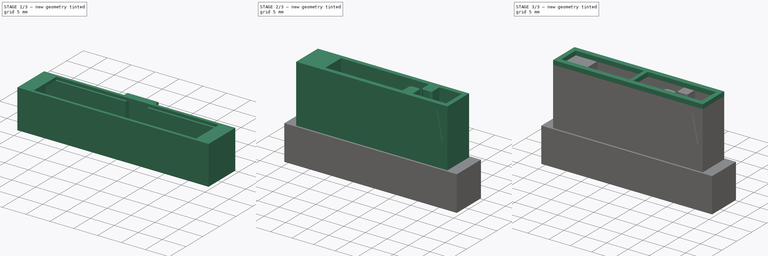
[diagram: build sequence overview — one tinted view per stage of 3, left to right]
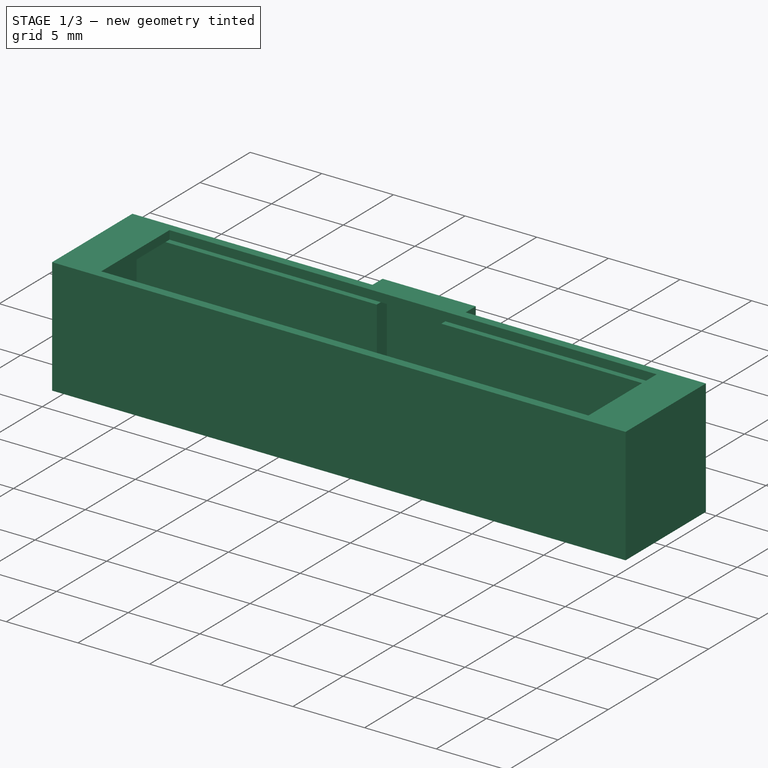
[diagram: stage 1 of 3 — iso view after this stage's code; geometry added in this stage tinted green]
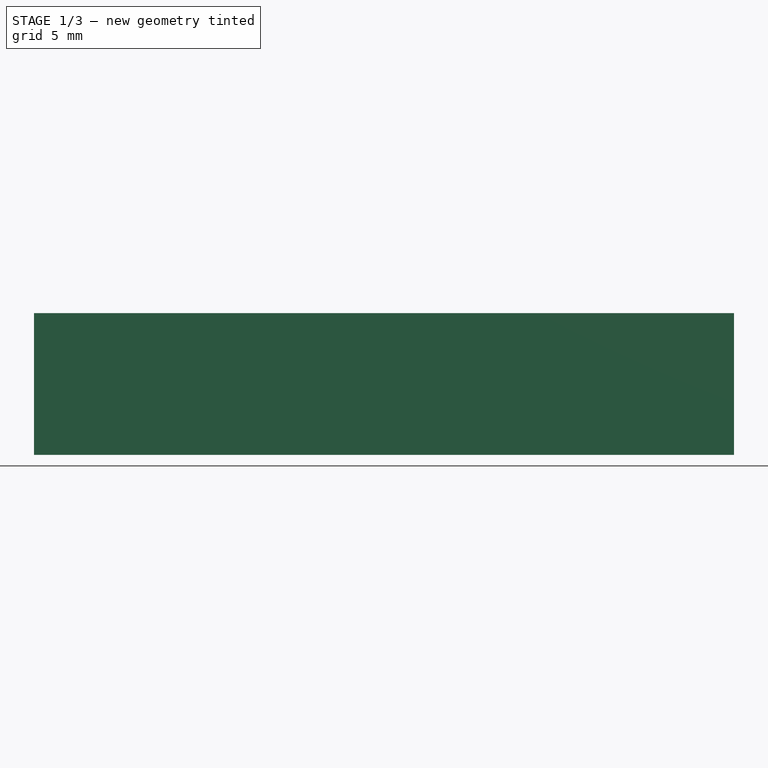
[diagram: stage 1 of 3 — front view after this stage's code; geometry added in this stage tinted green]
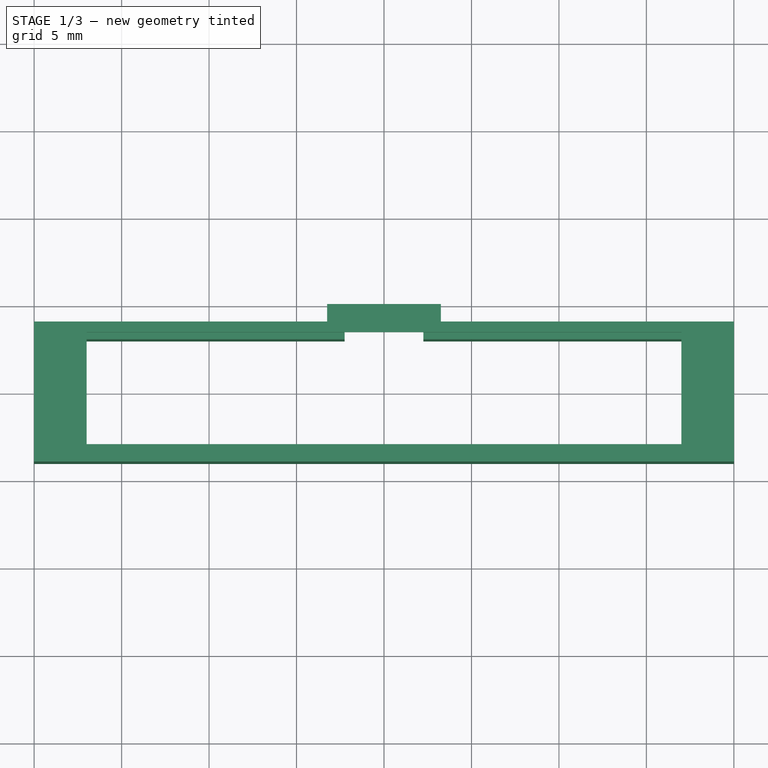
[diagram: stage 1 of 3 — top view after this stage's code; geometry added in this stage tinted green]
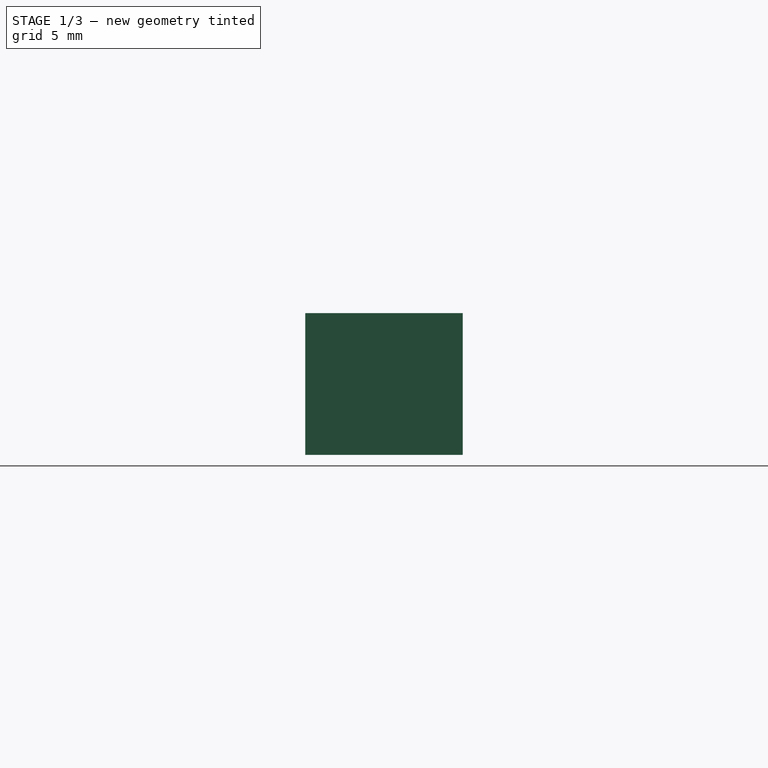
[diagram: stage 1 of 3 — right view after this stage's code; geometry added in this stage tinted green]
FCSTD DOCUMENT  (FreeCAD 0.20R26202 (Git))
Label: 26pos-jumper-adapter-MRV210-24
License: All rights reserved
LicenseURL: http://en.wikipedia.org/wiki/All_rights_reserved
objects: Sketcher::SketchObject×7, PartDesign::Pad×6, PartDesign::Pocket×1, PartDesign::Body×1
note: 22 computed .brp shape members not serialized (recipe doc carries the construction recipe); baked Part::Feature solids carry a one-line shape summary decoded from their .brp

FEATURE [Sketcher::SketchObject] Sketch  label="IDC-box"
  FullyConstrained = true
  MapMode = 5
  Support = -> [XY_Plane]
  expr: Constraints[16] = 5 + 13 * 2.54
  sketch-geometry (16):
    g0: LineSegment StartX=-19.01 StartY=3 StartZ=0 EndX=-2.25 EndY=3 EndZ=0
    g1: LineSegment StartX=19.01 StartY=3 StartZ=0 EndX=19.01 EndY=-3 EndZ=0
    g2: LineSegment StartX=19.01 StartY=-3 StartZ=0 EndX=-19.01 EndY=-3 EndZ=0
    g3: LineSegment StartX=-19.01 StartY=-3 StartZ=0 EndX=-19.01 EndY=3 EndZ=0
    g4: LineSegment StartX=-20.01 StartY=4 StartZ=0 EndX=-3.25 EndY=4 EndZ=0
    g5: LineSegment StartX=20.01 StartY=4 StartZ=0 EndX=20.01 EndY=-4 EndZ=0
    g6: LineSegment StartX=20.01 StartY=-4 StartZ=0 EndX=-20.01 EndY=-4 EndZ=0
    g7: LineSegment StartX=-20.01 StartY=-4 StartZ=0 EndX=-20.01 EndY=4 EndZ=0
    g8: LineSegment StartX=2.25 StartY=4 StartZ=0 EndX=2.25 EndY=3 EndZ=0
    g9: LineSegment StartX=-2.25 StartY=3 StartZ=0 EndX=-2.25 EndY=4 EndZ=0
    g10: LineSegment StartX=3.25 StartY=4 StartZ=0 EndX=20.01 EndY=4 EndZ=0
    g11: LineSegment StartX=2.25 StartY=3 StartZ=0 EndX=19.01 EndY=3 EndZ=0
    g12: LineSegment StartX=-3.25 StartY=4 StartZ=0 EndX=-3.25 EndY=5 EndZ=0
    g13: LineSegment StartX=-3.25 StartY=5 StartZ=0 EndX=3.25 EndY=5 EndZ=0
    g14: LineSegment StartX=3.25 StartY=5 StartZ=0 EndX=3.25 EndY=4 EndZ=0
    g15: LineSegment StartX=2.25 StartY=4 StartZ=0 EndX=-2.25 EndY=4 EndZ=0
  constraints (43):
    c: Coincident(g11,g1)
    c: Coincident(g1,g2)
    c: Coincident(g3,g0)
    c: Vertical(g3)
    c: Coincident(g10,g5)
    c: Coincident(g5,g6)
    c: Coincident(g6,g7)
    c: Coincident(g7,g4)
    c: Horizontal(g4)
    c: Horizontal(g6)
    c: Vertical(g5)
    c: Vertical(g7)
    c: DistanceY(g3,g3) = 6
    c: Symmetric(g2,g1,g-2)
    c: Coincident(g3,g2)
    c: Symmetric(g1,g11,g-1)
    c: DistanceX(g0,g11) = 38.02
    c: DistanceX(g1,g5) = 1
    c: DistanceY(g5,g1) = 1
    c: DistanceX(g4,g0) = 1
    c: DistanceY(g0,g4) = 1
    c: Vertical(g8)
    c: Vertical(g9)
    c: Tangent(g4,g10)
    c: Tangent(g0,g11)
    c: Coincident(g8,g11)
    c: Coincident(g9,g0)
    c: Symmetric(g0,g8,g-2)
    c: DistanceX(g9,g8) = 4.5
    c: Vertical(g12)
    c: Coincident(g12,g13)
    c: Horizontal(g13)
    c: Coincident(g13,g14)
    c: Vertical(g14)
    c: Coincident(g15,g9)
    c: Coincident(g4,g12)
    c: Coincident(g10,g14)
    c: Coincident(g8,g15)
    c: Horizontal(g15)
    c: PointOnObject(g8,g10)
    c: DistanceX(g4,g9) = 1
    c: DistanceX(g8,g10) = 1
    c: DistanceY(g14,g14) = 1
FEATURE [PartDesign::Pad] Pad
  Direction = (0,0,1)
  Length = 7.5
  Length2 = 100
  Profile = -> Sketch
  Reversed = true
  Type = 0
FEATURE [Sketcher::SketchObject] Sketch001  label="jumperbox"
  FullyConstrained = true
  MapMode = 5
  Support = -> [XY_Plane]
  expr: Constraints[51] = 3 * 2.54 + 0.1
  expr: Constraints[38] = 2 * 2.54 + 1
  expr: Constraints[50] = 8 * 2.54 + 0.1
  expr: Constraints[49] = 2 * 2.54 + 0.1
  expr: Constraints[48] = 2 * 2.54 + 0.1
  sketch-geometry (20):
    g0: LineSegment StartX=16.54 StartY=2.59 StartZ=0 EndX=16.54 EndY=-2.59 EndZ=0
    g1: LineSegment StartX=16.54 StartY=-2.59 StartZ=0 EndX=8.82 EndY=-2.59 EndZ=0
    g2: LineSegment StartX=-17.54 StartY=3.59 StartZ=0 EndX=17.54 EndY=3.59 EndZ=0
    g3: LineSegment StartX=17.54 StartY=3.59 StartZ=0 EndX=17.54 EndY=-3.59 EndZ=0
    g4: LineSegment StartX=17.54 StartY=-3.59 StartZ=0 EndX=-17.54 EndY=-3.59 EndZ=0
    g5: LineSegment StartX=-17.54 StartY=-3.59 StartZ=0 EndX=-17.54 EndY=3.59 EndZ=0
    g6: LineSegment StartX=6.42 StartY=-2.59 StartZ=0 EndX=6.42 EndY=-0.5 EndZ=0
    g7: LineSegment StartX=6.92 StartY=0 StartZ=0 EndX=8.32 EndY=0 EndZ=0
    g8: LineSegment StartX=8.82 StartY=-0.5 StartZ=0 EndX=8.82 EndY=-2.59 EndZ=0
    g9: LineSegment StartX=6.42 StartY=-2.59 StartZ=0 EndX=-11.46 EndY=-2.59 EndZ=0
    g10: ArcOfCircle CenterX=6.92 CenterY=-0.5 CenterZ=0 NormalX=0 NormalY=0 NormalZ=1 AngleXU=0 Radius=0.5 StartAngle=1.5708 EndAngle=3.14159
    g11: ArcOfCircle CenterX=8.32 CenterY=-0.5 CenterZ=0 NormalX=0 NormalY=0 NormalZ=1 AngleXU=0 Radius=0.5 StartAngle=0 EndAngle=1.5708
    g12: LineSegment StartX=11.36 StartY=2.59 StartZ=0 EndX=11.36 EndY=0.5 EndZ=0
    g13: LineSegment StartX=10.86 StartY=0 StartZ=0 EndX=9.46 EndY=0 EndZ=0
    g14: LineSegment StartX=8.96 StartY=0.5 StartZ=0 EndX=8.96 EndY=2.59 EndZ=0
    g15: ArcOfCircle CenterX=10.86 CenterY=0.5 CenterZ=0 NormalX=0 NormalY=0 NormalZ=1 AngleXU=0 Radius=0.5 StartAngle=4.71239 EndAngle=6.28319
    g16: ArcOfCircle CenterX=9.46 CenterY=0.5 CenterZ=0 NormalX=0 NormalY=0 NormalZ=1 AngleXU=0 Radius=0.5 StartAngle=3.14159 EndAngle=4.71239
    g17: LineSegment StartX=11.36 StartY=2.59 StartZ=0 EndX=16.54 EndY=2.59 EndZ=0
    g18: LineSegment StartX=-11.46 StartY=-2.59 StartZ=0 EndX=-11.46 EndY=2.59 EndZ=0
    g19: LineSegment StartX=-11.46 StartY=2.59 StartZ=0 EndX=8.96 EndY=2.59 EndZ=0
  constraints (52):
    c: Coincident(g17,g0)
    c: Coincident(g0,g1)
    c: Coincident(g2,g3)
    c: Coincident(g3,g4)
    c: Coincident(g4,g5)
    c: Coincident(g5,g2)
    c: Horizontal(g4)
    c: Vertical(g3)
    c: Symmetric(g0,g17,g-1)
    c: DistanceX(g0,g3) = 1
    c: DistanceY(g3,g0) = 1
    c: Horizontal(g7)
    c: Vertical(g6)
    c: Vertical(g8)
    c: Tangent(g1,g9)
    c: Coincident(g6,g9)
    c: Coincident(g1,g8)
    c: Tangent(g6,g10) = 1.5708
    c: Tangent(g7,g10) = 1.5708
    c: Tangent(g7,g11) = 1.5708
    c: Tangent(g8,g11) = 1.5708
    c: Equal(g11,g10)
    c: PointOnObject(g7,g-1)
    c: Radius(g10) = 0.5
    c: Horizontal(g13)
    c: Vertical(g12)
    c: Vertical(g14)
    c: Tangent(g12,g15) = 1.5708
    c: Tangent(g13,g15) = 1.5708
    c: Tangent(g13,g16) = 1.5708
    c: Tangent(g14,g16) = 1.5708
    c: Equal(g16,g15)
    c: Equal(g15,g11)
    c: PointOnObject(g13,g-1)
    c: Coincident(g12,g17)
    c: Coincident(g19,g14)
    c: Coincident(g18,g9)
    c: Coincident(g18,g19)
    c: DistanceX(g2,g18) = 6.08
    c: Symmetric(g2,g2,g-2)
    c: DistanceX(g2,g2) = 35.08
    c: DistanceX(g6,g1) = 2.4
    c: DistanceX(g14,g12) = 2.4
    c: Horizontal(g9)
    c: Horizontal(g17)
    c: PointOnObject(g12,g19)
    c: Symmetric(g9,g18,g-1)
    c: Symmetric(g4,g2,g-1)
    c: DistanceY(g18,g18) = 5.18
    c: DistanceX(g17,g17) = 5.18
    c: DistanceX(g19,g19) = 20.42
    c: DistanceX(g1,g1) = 7.72
FEATURE [Sketcher::SketchObject] Sketch003  label="downarrow"
  FullyConstrained = false
  MapMode = 5
  Placement = pos=(0,4,0) rot=(0,0.707107,0.707107;3.14159rad)
  Support = -> [Pad]
  sketch-geometry (3):
    g0: LineSegment StartX=15 StartY=-6 StartZ=0 EndX=16.5 EndY=-1.5 EndZ=0
    g1: LineSegment StartX=16.5 StartY=-1.5 StartZ=0 EndX=13.5 EndY=-1.5 EndZ=0
    g2: LineSegment StartX=13.5 StartY=-1.5 StartZ=0 EndX=15 EndY=-6 EndZ=0
  constraints (4):
    c: Coincident(g0,g1)
    c: Horizontal(g1)
    c: Coincident(g1,g2)
    c: Coincident(g2,g0)
FEATURE [Sketcher::SketchObject] Sketch002  label="ceiling"
  ExternalGeometry = -> [Pad]
  FullyConstrained = true
  MapMode = 5
  Support = -> [XY_Plane]
  sketch-geometry (12):
    g0: LineSegment StartX=-17 StartY=3.4 StartZ=0 EndX=17 EndY=3.4 EndZ=0
    g1: LineSegment StartX=-17 StartY=-3.4 StartZ=0 EndX=-17 EndY=3.4 EndZ=0
    g2: LineSegment StartX=-20.01 StartY=4 StartZ=0 EndX=-20.01 EndY=-4 EndZ=0
    g3: LineSegment StartX=-20.01 StartY=-4 StartZ=0 EndX=20.01 EndY=-4 EndZ=0
    g4: LineSegment StartX=20.01 StartY=-4 StartZ=0 EndX=20.01 EndY=4 EndZ=0
    g5: LineSegment StartX=20.01 StartY=4 StartZ=0 EndX=3.25 EndY=4 EndZ=0
    g6: LineSegment StartX=3.25 StartY=4 StartZ=0 EndX=3.25 EndY=5 EndZ=0
    g7: LineSegment StartX=3.25 StartY=5 StartZ=0 EndX=-3.25 EndY=5 EndZ=0
    g8: LineSegment StartX=-3.25 StartY=5 StartZ=0 EndX=-3.25 EndY=4 EndZ=0
    g9: LineSegment StartX=-3.25 StartY=4 StartZ=0 EndX=-20.01 EndY=4 EndZ=0
    g10: LineSegment StartX=-17 StartY=-3.4 StartZ=0 EndX=17 EndY=-3.4 EndZ=0
    g11: LineSegment StartX=17 StartY=-3.4 StartZ=0 EndX=17 EndY=3.4 EndZ=0
  constraints (28):
    c: Coincident(g-3,g2)
    c: Vertical(g2)
    c: Coincident(g2,g3)
    c: Coincident(g3,g-5)
    c: Horizontal(g3)
    c: Coincident(g3,g4)
    c: Coincident(g4,g-5)
    c: Coincident(g4,g5)
    c: Horizontal(g5)
    c: Coincident(g5,g6)
    c: Coincident(g6,g-4)
    c: Vertical(g6)
    c: Coincident(g6,g7)
    c: Coincident(g7,g-4)
    c: Coincident(g7,g8)
    c: Coincident(g8,g-3)
    c: Coincident(g8,g9)
    c: Coincident(g9,g2)
    c: Symmetric(g1,g0,g-2)
    c: DistanceX(g1,g0) = 34
    c: DistanceY(g1,g1) = 6.8
    c: Symmetric(g1,g1,g-1)
    c: Coincident(g0,g1)
    c: Coincident(g1,g10)
    c: Horizontal(g10)
    c: Coincident(g10,g11)
    c: Vertical(g11)
    c: Coincident(g11,g0)
FEATURE [PartDesign::Pad] Pad001
  BaseFeature = -> Pad
  Direction = (0,0,1)
  Length = 0.6
  Length2 = 100
  Profile = -> Sketch002
  Type = 0
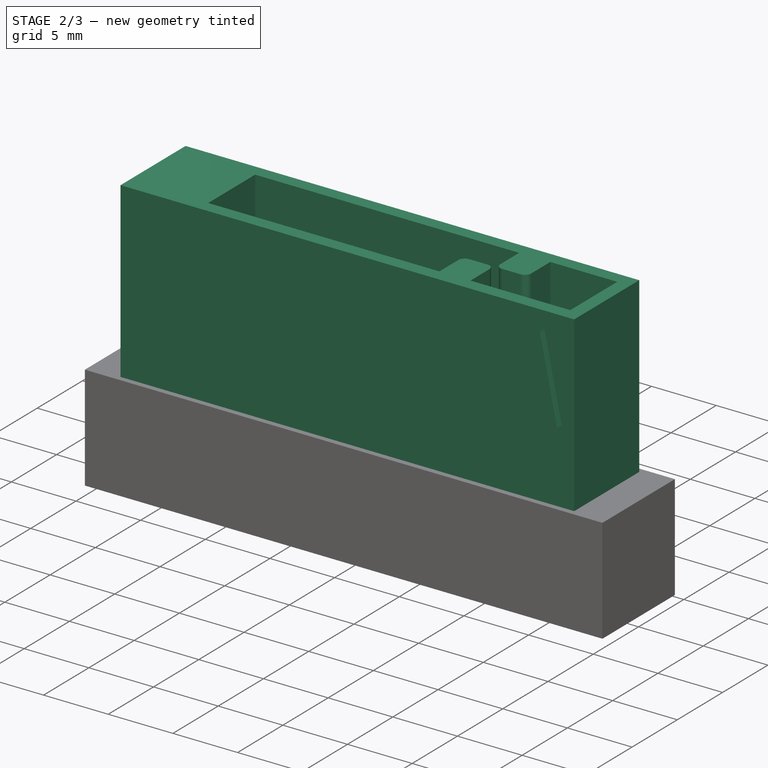
[diagram: stage 2 of 3 — iso view after this stage's code; geometry added in this stage tinted green]
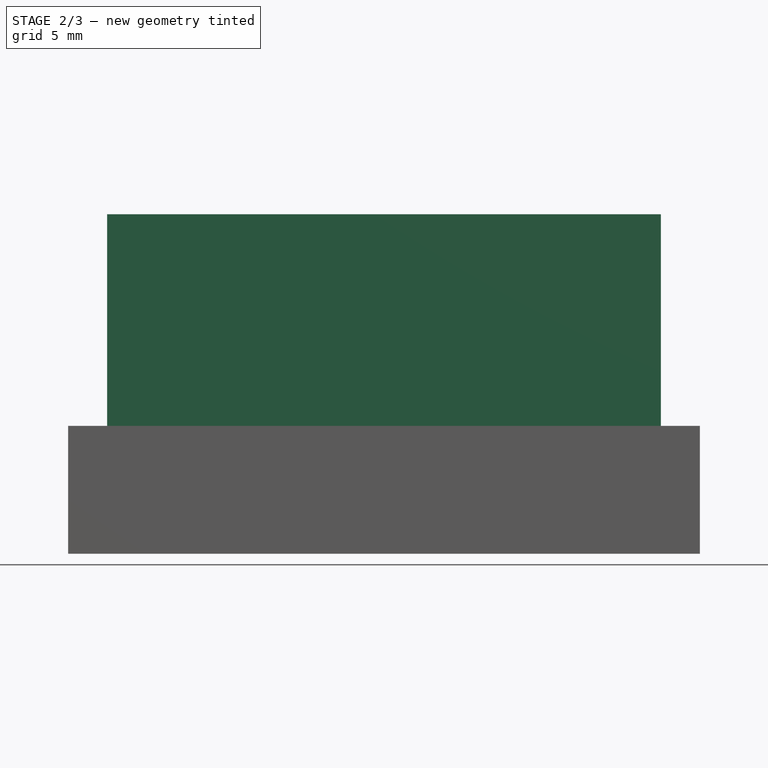
[diagram: stage 2 of 3 — front view after this stage's code; geometry added in this stage tinted green]
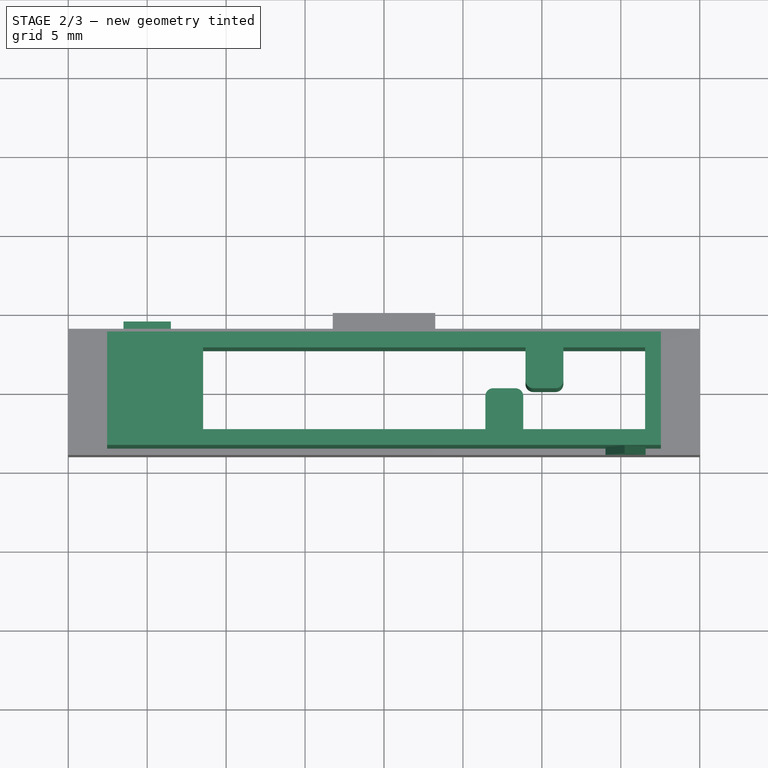
[diagram: stage 2 of 3 — top view after this stage's code; geometry added in this stage tinted green]
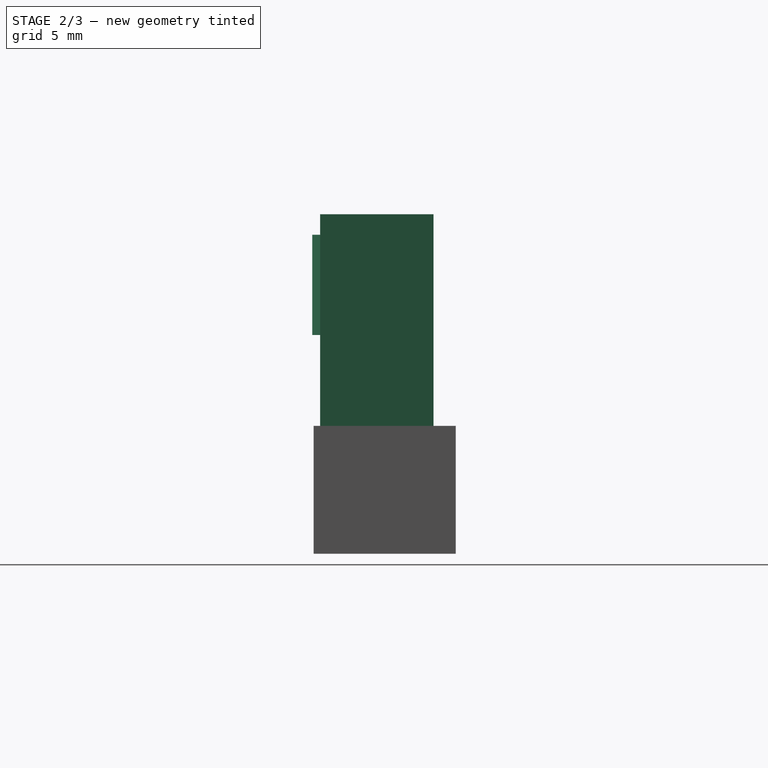
[diagram: stage 2 of 3 — right view after this stage's code; geometry added in this stage tinted green]
FEATURE [PartDesign::Pad] Pad002  label="Jumperbox"
  BaseFeature = -> Pad001
  Direction = (0,0,1)
  Length = 14
  Length2 = 100
  Profile = -> Sketch001
  Type = 0
FEATURE [PartDesign::Pad] Pad003  label="Downarrow"
  BaseFeature = -> Pad002
  Direction = (0,1,-2e-16)
  Length = 0.5
  Length2 = 100
  Profile = -> Sketch003
  Type = 0
FEATURE [Sketcher::SketchObject] Sketch004  label="uparrow"
  FullyConstrained = false
  MapMode = 5
  Placement = pos=(0,-3.59,0) rot=(1,0,0;1.5708rad)
  Support = -> [Pad003]
  sketch-geometry (3):
    g0: LineSegment StartX=16.5685 StartY=6.35 StartZ=0 EndX=15.24 EndY=12.7 EndZ=0
    g1: LineSegment StartX=15.24 StartY=12.7 StartZ=0 EndX=14.0285 EndY=6.35 EndZ=0
    g2: LineSegment StartX=14.0285 StartY=6.35 StartZ=0 EndX=16.5685 EndY=6.35 EndZ=0
  constraints (4):
    c: Coincident(g0,g1)
    c: Coincident(g1,g2)
    c: Coincident(g2,g0)
    c: Horizontal(g2)
FEATURE [PartDesign::Pad] Pad004  label="Uparrow"
  BaseFeature = -> Pad003
  Direction = (0,-1,2e-16)
  Length = 0.5
  Length2 = 100
  Profile = -> Sketch004
  Type = 0
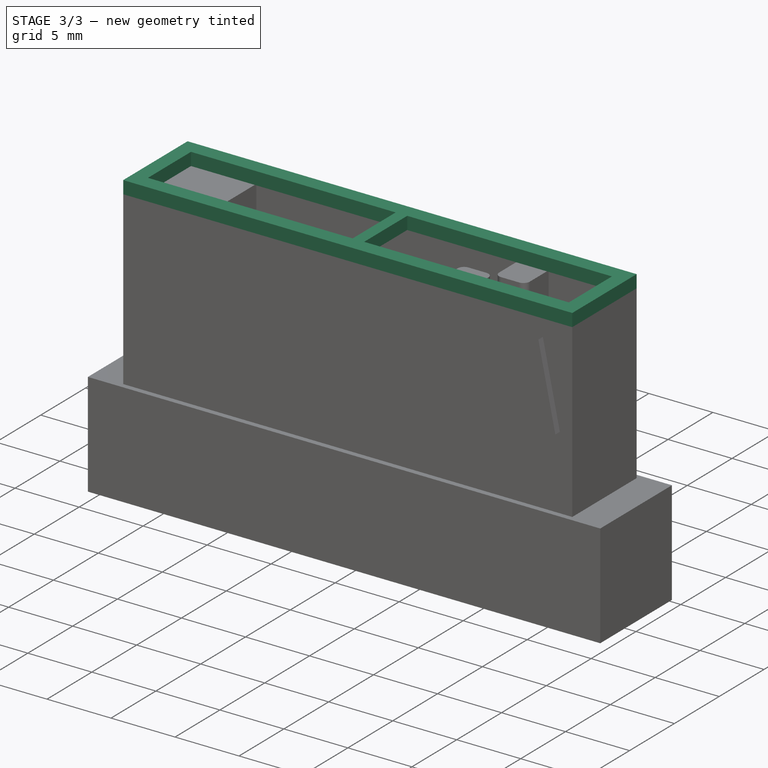
[diagram: stage 3 of 3 — iso view after this stage's code; geometry added in this stage tinted green]
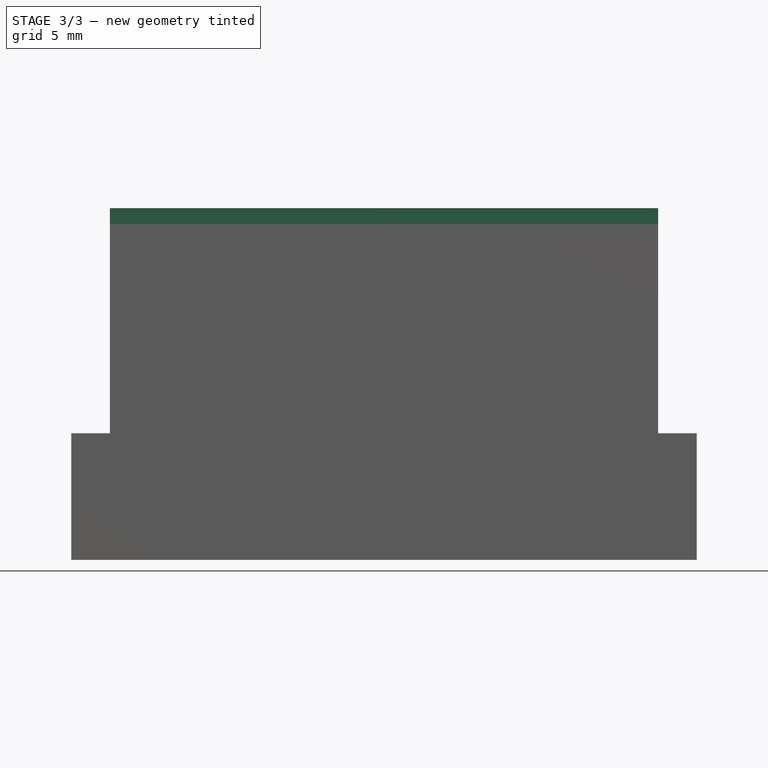
[diagram: stage 3 of 3 — front view after this stage's code; geometry added in this stage tinted green]
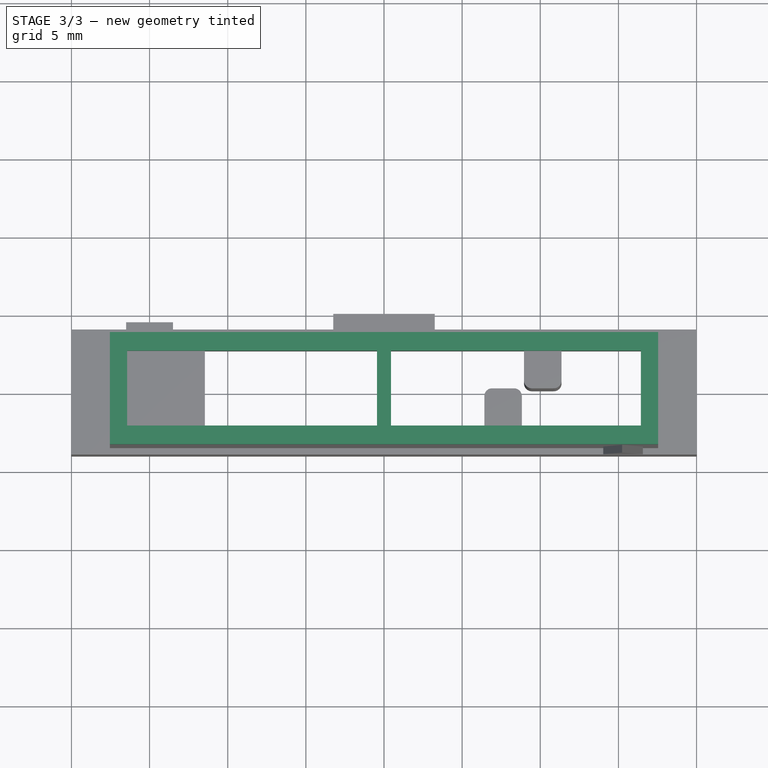
[diagram: stage 3 of 3 — top view after this stage's code; geometry added in this stage tinted green]
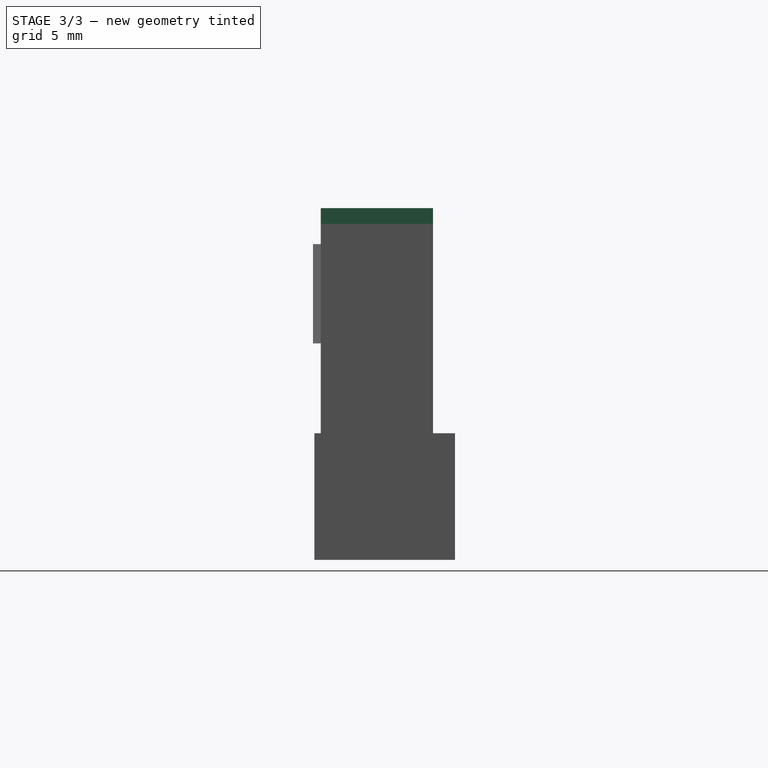
[diagram: stage 3 of 3 — right view after this stage's code; geometry added in this stage tinted green]
FEATURE [Sketcher::SketchObject] Sketch005  label="neck"
  AttachmentOffset = pos=(0,0,14) rot=(0,0,1;0rad)
  ExternalGeometry = -> [Pad004]
  FullyConstrained = true
  MapMode = 5
  Placement = pos=(0,0,14) rot=(0,0,1;0rad)
  Support = -> [XY_Plane]
  sketch-geometry (12):
    g0: LineSegment StartX=-17.54 StartY=3.59 StartZ=0 EndX=17.54 EndY=3.59 EndZ=0
    g1: LineSegment StartX=17.54 StartY=3.59 StartZ=0 EndX=17.54 EndY=-3.59 EndZ=0
    g2: LineSegment StartX=17.54 StartY=-3.59 StartZ=0 EndX=-17.54 EndY=-3.59 EndZ=0
    g3: LineSegment StartX=-17.54 StartY=-3.59 StartZ=0 EndX=-17.54 EndY=3.59 EndZ=0
    g4: LineSegment StartX=-16.44 StartY=2.4 StartZ=0 EndX=-0.45 EndY=2.4 EndZ=0
    g5: LineSegment StartX=-0.45 StartY=2.4 StartZ=0 EndX=-0.45 EndY=-2.4 EndZ=0
    g6: LineSegment StartX=-0.45 StartY=-2.4 StartZ=0 EndX=-16.44 EndY=-2.4 EndZ=0
    g7: LineSegment StartX=-16.44 StartY=-2.4 StartZ=0 EndX=-16.44 EndY=2.4 EndZ=0
    g8: LineSegment StartX=0.45 StartY=2.4 StartZ=0 EndX=16.44 EndY=2.4 EndZ=0
    g9: LineSegment StartX=16.44 StartY=2.4 StartZ=0 EndX=16.44 EndY=-2.4 EndZ=0
    g10: LineSegment StartX=16.44 StartY=-2.4 StartZ=0 EndX=0.45 EndY=-2.4 EndZ=0
    g11: LineSegment StartX=0.45 StartY=-2.4 StartZ=0 EndX=0.45 EndY=2.4 EndZ=0
  constraints (32):
    c: Coincident(g0,g1)
    c: Coincident(g1,g2)
    c: Coincident(g2,g3)
    c: Coincident(g3,g0)
    c: Horizontal(g0)
    c: Horizontal(g2)
    c: Vertical(g1)
    c: Vertical(g3)
    c: Coincident(g0,g-3)
    c: Symmetric(g0,g1,g-1)
    c: Coincident(g4,g5)
    c: Coincident(g5,g6)
    c: Coincident(g6,g7)
    c: Coincident(g7,g4)
    c: Horizontal(g4)
    c: Horizontal(g6)
    c: Vertical(g5)
    c: Vertical(g7)
    c: Coincident(g8,g9)
    c: Coincident(g9,g10)
    c: Coincident(g10,g11)
    c: Coincident(g11,g8)
    c: Horizontal(g8)
    c: Horizontal(g10)
    c: Vertical(g11)
    c: Symmetric(g5,g10,g-2)
    c: DistanceX(g5,g10) = 0.9
    c: Horizontal(g8,g4)
    c: Equal(g4,g8)
    c: Symmetric(g9,g8,g-1)
    c: DistanceY(g9,g9) = 4.8
    c: DistanceX(g8,g0) = 1.1
FEATURE [PartDesign::Pad] Pad005  label="Neck"
  BaseFeature = -> Pad004
  Direction = (0,0,1)
  Length = 1
  Length2 = 100
  Profile = -> Sketch005
  ReferenceAxis = -> Sketch005 [N_Axis]
  Type = 0
FEATURE [Sketcher::SketchObject] Sketch006
  FullyConstrained = true
  MapMode = 5
  Placement = pos=(0,0,0) rot=(0.57735,0.57735,0.57735;2.0944rad)
  Support = -> [YZ_Plane]
  sketch-geometry (5):
    g0: LineSegment StartX=-3 StartY=0 StartZ=0 EndX=-3 EndY=-1 EndZ=0
    g1: LineSegment StartX=-3 StartY=-1 StartZ=0 EndX=3 EndY=-1 EndZ=0
    g2: LineSegment StartX=3 StartY=-1 StartZ=0 EndX=3 EndY=0 EndZ=0
    g3: LineSegment StartX=3 StartY=0 StartZ=0 EndX=0 EndY=3 EndZ=0
    g4: LineSegment StartX=0 StartY=3 StartZ=0 EndX=-3 EndY=0 EndZ=0
  constraints (14):
    c: PointOnObject(g0,g-1)
    c: Vertical(g0)
    c: Coincident(g0,g1)
    c: Coincident(g1,g2)
    c: PointOnObject(g2,g-1)
    c: Vertical(g2)
    c: Coincident(g2,g3)
    c: PointOnObject(g3,g-2)
    c: Coincident(g3,g4)
    c: Coincident(g4,g0)
    c: Symmetric(g0,g1,g-2)
    c: DistanceX(g1,g1) = 6
    c: DistanceY(g0,g0) = 1
    c: Angle(g3,g-1) = 0.785398
FEATURE [PartDesign::Pocket] Pocket
  BaseFeature = -> Pad005
  Length = 33
  Length2 = 100
  Midplane = true
  Profile = -> Sketch006
  Type = 0
FEATURE [PartDesign::Body] Body
  Group = -> [Sketch,Pad,Sketch002,Pad001,Sketch001,Pad002,Sketch003,Pad003,Sketch004,Pad004,Sketch005,Pad005,Sketch006,Pocket]
  Origin = -> Origin
  Tip = -> Pocket
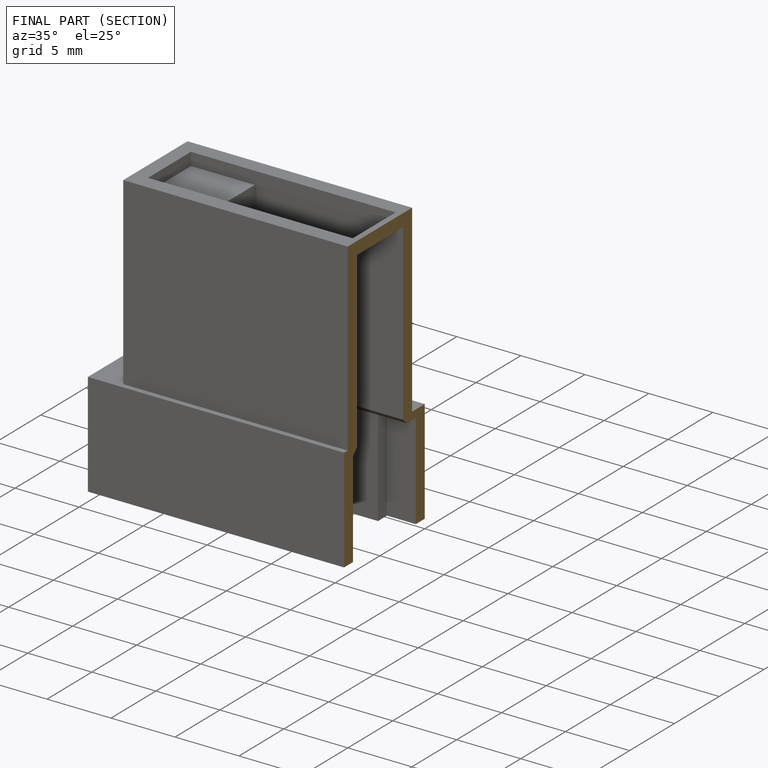
[diagram: finished part — half-section view (interior)]
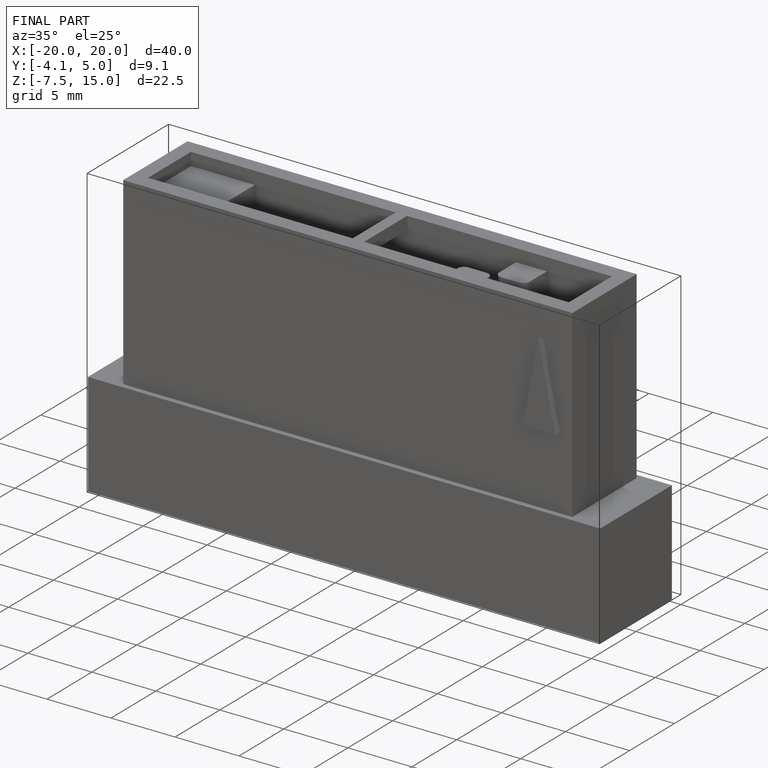
[diagram: finished part — iso view with bounding-box wireframe]
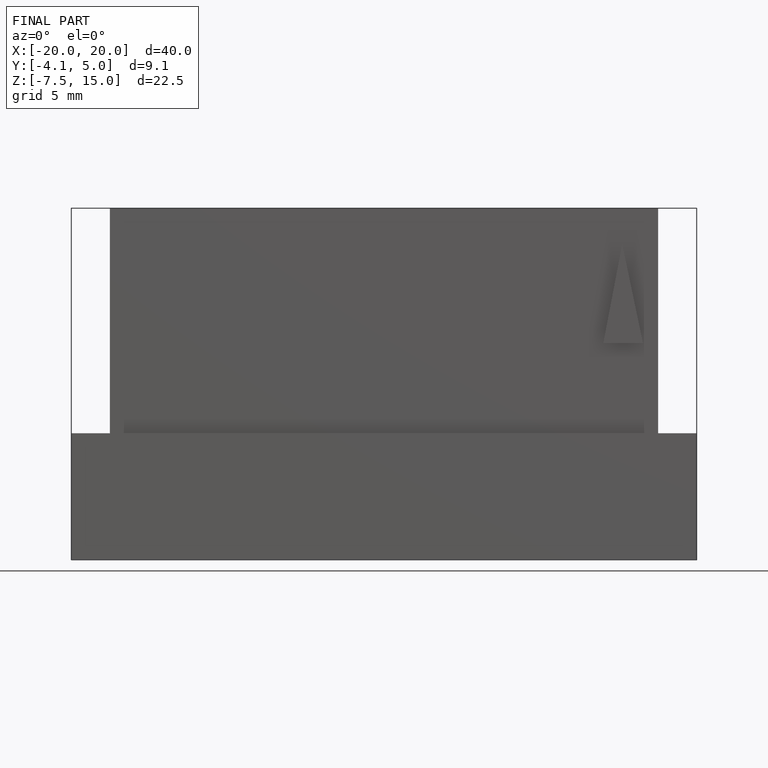
[diagram: finished part — front view with bounding-box wireframe]
